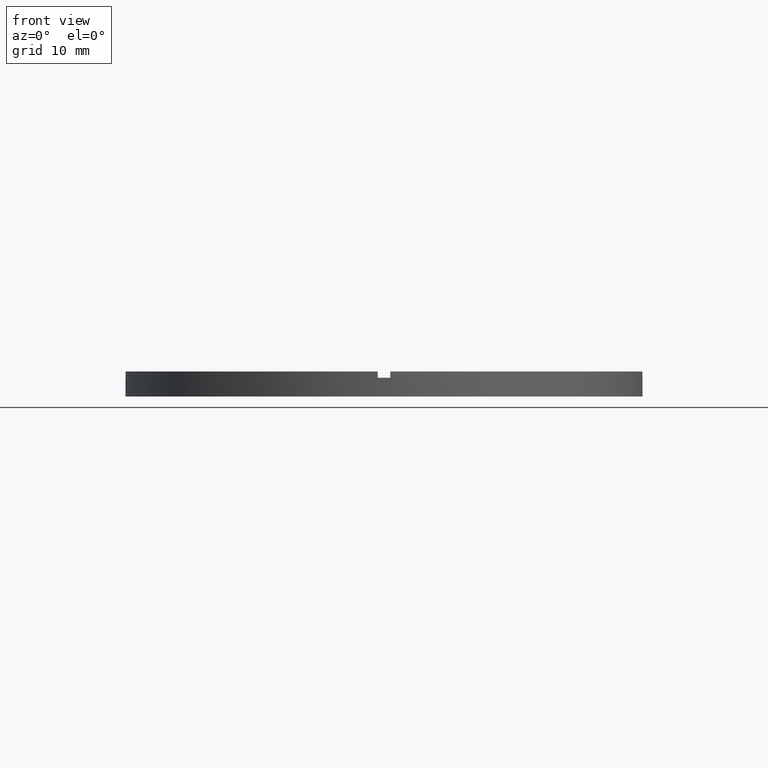
[diagram: clean part render]
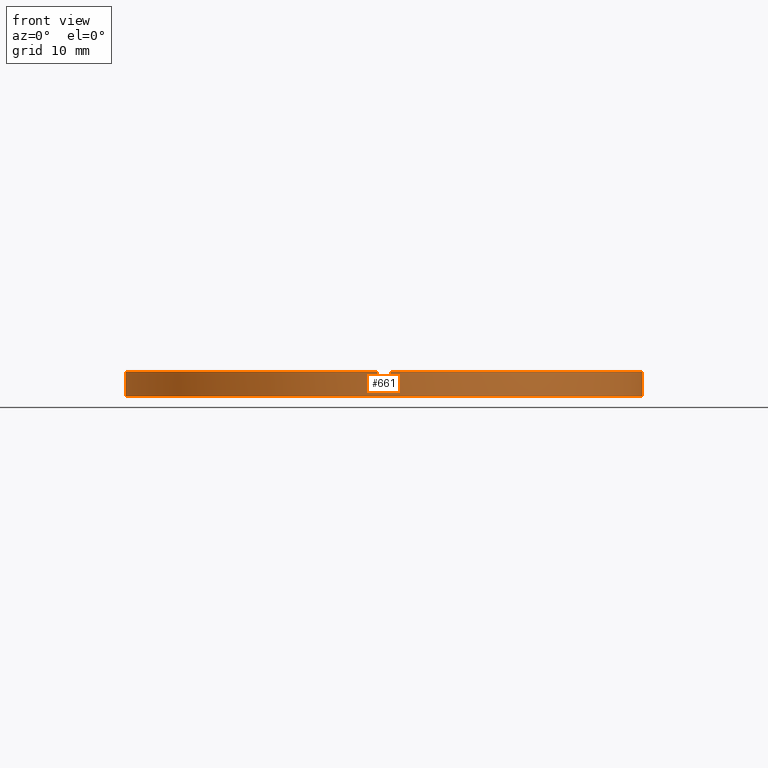
[diagram: same view with one face highlighted and labeled with its STEP entity id]
A machine part, front view. The second image highlights one B-rep face of the part: STEP entity #661.
In plain terms, the highlighted cylindrical surface (partial cylindrical patch) has radius 41.5 mm, axis along (-0, -0, -1).
Its self-contained STEP definition (entity closure, byte-faithful):
#16 = VERTEX_POINT ( 'NONE', #416 ) ;
#17 = DIRECTION ( 'NONE',  ( -1.000000000000000000, 0.000000000000000000, 0.000000000000000000 ) ) ;
#45 = EDGE_CURVE ( 'NONE', #16, #161, #681, .T. ) ;
#55 = CARTESIAN_POINT ( 'NONE',  ( 0.000000000000000000, 0.000000000000000000, 4.000000000000000000 ) ) ;
#63 = EDGE_CURVE ( 'NONE', #505, #712, #167, .T. ) ;
#64 = DIRECTION ( 'NONE',  ( 0.000000000000000000, 0.000000000000000000, 1.000000000000000000 ) ) ;
#66 = CARTESIAN_POINT ( 'NONE',  ( -41.50000000000000000, 0.000000000000000000, 4.000000000000000000 ) ) ;
#67 = EDGE_CURVE ( 'NONE', #505, #555, #156, .T. ) ;
#70 = DIRECTION ( 'NONE',  ( 0.000000000000000000, 0.000000000000000000, 1.000000000000000000 ) ) ;
#71 = CARTESIAN_POINT ( 'NONE',  ( 0.000000000000000000, 0.000000000000000000, 4.000000000000000000 ) ) ;
#72 = AXIS2_PLACEMENT_3D ( 'NONE', #71, #80, #17 ) ;
#76 = DIRECTION ( 'NONE',  ( 0.000000000000000000, 0.000000000000000000, 1.000000000000000000 ) ) ;
#80 = DIRECTION ( 'NONE',  ( -0.000000000000000000, -0.000000000000000000, -1.000000000000000000 ) ) ;
#82 = EDGE_CURVE ( 'NONE', #368, #16, #686, .T. ) ;
#85 = CARTESIAN_POINT ( 'NONE',  ( 41.48795005781799006, -1.000000000000156763, 3.000000000000000000 ) ) ;
#93 = EDGE_CURVE ( 'NONE', #564, #700, #466, .T. ) ;
#95 = CARTESIAN_POINT ( 'NONE',  ( 0.000000000000000000, 0.000000000000000000, 3.000000000000000000 ) ) ;
#100 = DIRECTION ( 'NONE',  ( -0.000000000000000000, -0.000000000000000000, -1.000000000000000000 ) ) ;
#110 = EDGE_LOOP ( 'NONE', ( #543, #778, #268, #507, #694, #767, #180, #429, #518, #574, #148, #178 ) ) ;
#117 = CARTESIAN_POINT ( 'NONE',  ( 0.000000000000000000, 0.000000000000000000, 3.000000000000000000 ) ) ;
#120 = CARTESIAN_POINT ( 'NONE',  ( 41.50000000000000000, 5.082284216461515748E-15, 0.000000000000000000 ) ) ;
#126 = DIRECTION ( 'NONE',  ( 1.000000000000000000, 0.000000000000000000, 0.000000000000000000 ) ) ;
#146 = DIRECTION ( 'NONE',  ( 0.000000000000000000, 0.000000000000000000, 1.000000000000000000 ) ) ;
#148 = ORIENTED_EDGE ( 'NONE', *, *, #82, .T. ) ;
#156 = LINE ( 'NONE', #571, #411 ) ;
#159 = EDGE_CURVE ( 'NONE', #521, #700, #437, .T. ) ;
#161 = VERTEX_POINT ( 'NONE', #120 ) ;
#167 = CIRCLE ( 'NONE', #444, 41.50000000000000000 ) ;
#171 = VERTEX_POINT ( 'NONE', #404 ) ;
#178 = ORIENTED_EDGE ( 'NONE', *, *, #45, .T. ) ;
#180 = ORIENTED_EDGE ( 'NONE', *, *, #159, .T. ) ;
#185 = LINE ( 'NONE', #617, #479 ) ;
#193 = AXIS2_PLACEMENT_3D ( 'NONE', #703, #70, #654 ) ;
#205 = CIRCLE ( 'NONE', #609, 41.50000000000000000 ) ;
#214 = VECTOR ( 'NONE', #100, 1000.000000000000000 ) ;
#223 = VECTOR ( 'NONE', #64, 1000.000000000000000 ) ;
#229 = EDGE_CURVE ( 'NONE', #521, #779, #708, .T. ) ;
#236 = VECTOR ( 'NONE', #286, 1000.000000000000000 ) ;
#249 = DIRECTION ( 'NONE',  ( -0.000000000000000000, -0.000000000000000000, -1.000000000000000000 ) ) ;
#268 = ORIENTED_EDGE ( 'NONE', *, *, #67, .T. ) ;
#276 = DIRECTION ( 'NONE',  ( -0.000000000000000000, -0.000000000000000000, -1.000000000000000000 ) ) ;
#286 = DIRECTION ( 'NONE',  ( -0.000000000000000000, -0.000000000000000000, -1.000000000000000000 ) ) ;
#308 = DIRECTION ( 'NONE',  ( 1.000000000000000000, 0.000000000000000000, 0.000000000000000000 ) ) ;
#316 = CARTESIAN_POINT ( 'NONE',  ( 41.50000000000000000, 5.082284216461515748E-15, 3.000000000000000000 ) ) ;
#317 = CARTESIAN_POINT ( 'NONE',  ( 0.9999999999998411271, -41.48795005781800427, 3.000000000000000000 ) ) ;
#327 = CARTESIAN_POINT ( 'NONE',  ( 0.9999999999998411271, -41.48795005781800427, 4.000000000000000000 ) ) ;
#332 = CARTESIAN_POINT ( 'NONE',  ( 0.9999999999998411271, -41.48795005781800427, 4.000000000000000000 ) ) ;
#339 = CARTESIAN_POINT ( 'NONE',  ( -41.48795005781799716, -1.000000000000028866, 4.000000000000000000 ) ) ;
#346 = EDGE_CURVE ( 'NONE', #527, #555, #205, .T. ) ;
#351 = AXIS2_PLACEMENT_3D ( 'NONE', #508, #613, #126 ) ;
#364 = CIRCLE ( 'NONE', #351, 41.50000000000000000 ) ;
#368 = VERTEX_POINT ( 'NONE', #544 ) ;
#379 = EDGE_CURVE ( 'NONE', #564, #171, #468, .T. ) ;
#398 = DIRECTION ( 'NONE',  ( -0.000000000000000000, 0.000000000000000000, 1.000000000000000000 ) ) ;
#404 = CARTESIAN_POINT ( 'NONE',  ( -41.48795005781799716, -1.000000000000028866, 3.000000000000000000 ) ) ;
#411 = VECTOR ( 'NONE', #658, 1000.000000000000000 ) ;
#416 = CARTESIAN_POINT ( 'NONE',  ( -41.50000000000000000, 0.000000000000000000, 0.000000000000000000 ) ) ;
#429 = ORIENTED_EDGE ( 'NONE', *, *, #93, .F. ) ;
#437 = LINE ( 'NONE', #722, #223 ) ;
#441 = EDGE_CURVE ( 'NONE', #712, #161, #185, .T. ) ;
#444 = AXIS2_PLACEMENT_3D ( 'NONE', #95, #76, #308 ) ;
#446 = VECTOR ( 'NONE', #249, 1000.000000000000000 ) ;
#466 = CIRCLE ( 'NONE', #193, 41.50000000000000000 ) ;
#468 = LINE ( 'NONE', #339, #214 ) ;
#479 = VECTOR ( 'NONE', #276, 1000.000000000000000 ) ;
#505 = VERTEX_POINT ( 'NONE', #85 ) ;
#507 = ORIENTED_EDGE ( 'NONE', *, *, #346, .F. ) ;
#508 = CARTESIAN_POINT ( 'NONE',  ( 0.000000000000000000, 0.000000000000000000, 3.000000000000000000 ) ) ;
#518 = ORIENTED_EDGE ( 'NONE', *, *, #379, .T. ) ;
#521 = VERTEX_POINT ( 'NONE', #585 ) ;
#527 = VERTEX_POINT ( 'NONE', #332 ) ;
#534 = EDGE_CURVE ( 'NONE', #527, #779, #762, .T. ) ;
#543 = ORIENTED_EDGE ( 'NONE', *, *, #441, .F. ) ;
#544 = CARTESIAN_POINT ( 'NONE',  ( -41.50000000000000000, 0.000000000000000000, 3.000000000000000000 ) ) ;
#553 = DIRECTION ( 'NONE',  ( 1.000000000000000000, 0.000000000000000000, 0.000000000000000000 ) ) ;
#555 = VERTEX_POINT ( 'NONE', #592 ) ;
#564 = VERTEX_POINT ( 'NONE', #669 ) ;
#571 = CARTESIAN_POINT ( 'NONE',  ( 41.48795005781799006, -1.000000000000156763, 4.000000000000000000 ) ) ;
#574 = ORIENTED_EDGE ( 'NONE', *, *, #719, .F. ) ;
#575 = AXIS2_PLACEMENT_3D ( 'NONE', #117, #398, #553 ) ;
#585 = CARTESIAN_POINT ( 'NONE',  ( -1.000000000000158984, -41.48795005781799006, 3.000000000000000000 ) ) ;
#592 = CARTESIAN_POINT ( 'NONE',  ( 41.48795005781799006, -1.000000000000156763, 4.000000000000000000 ) ) ;
#599 = DIRECTION ( 'NONE',  ( 1.000000000000000000, 0.000000000000000000, 0.000000000000000000 ) ) ;
#602 = DIRECTION ( 'NONE',  ( 1.000000000000000000, 0.000000000000000000, 0.000000000000000000 ) ) ;
#609 = AXIS2_PLACEMENT_3D ( 'NONE', #55, #146, #602 ) ;
#613 = DIRECTION ( 'NONE',  ( 0.000000000000000000, 0.000000000000000000, 1.000000000000000000 ) ) ;
#617 = CARTESIAN_POINT ( 'NONE',  ( 41.50000000000000000, 5.082284216461515748E-15, 4.000000000000000000 ) ) ;
#620 = DIRECTION ( 'NONE',  ( 0.000000000000000000, 0.000000000000000000, 1.000000000000000000 ) ) ;
#643 = AXIS2_PLACEMENT_3D ( 'NONE', #670, #620, #599 ) ;
#644 = CARTESIAN_POINT ( 'NONE',  ( -1.000000000000158984, -41.48795005781799006, 4.000000000000000000 ) ) ;
#654 = DIRECTION ( 'NONE',  ( 1.000000000000000000, 0.000000000000000000, 0.000000000000000000 ) ) ;
#658 = DIRECTION ( 'NONE',  ( 0.000000000000000000, 0.000000000000000000, 1.000000000000000000 ) ) ;
#661 = ADVANCED_FACE ( 'NONE', ( #746 ), #727, .T. ) ;
#669 = CARTESIAN_POINT ( 'NONE',  ( -41.48795005781799716, -1.000000000000028866, 4.000000000000000000 ) ) ;
#670 = CARTESIAN_POINT ( 'NONE',  ( 0.000000000000000000, 0.000000000000000000, 0.000000000000000000 ) ) ;
#681 = CIRCLE ( 'NONE', #643, 41.50000000000000000 ) ;
#686 = LINE ( 'NONE', #66, #446 ) ;
#694 = ORIENTED_EDGE ( 'NONE', *, *, #534, .T. ) ;
#700 = VERTEX_POINT ( 'NONE', #644 ) ;
#703 = CARTESIAN_POINT ( 'NONE',  ( 0.000000000000000000, 0.000000000000000000, 4.000000000000000000 ) ) ;
#708 = CIRCLE ( 'NONE', #575, 41.50000000000000000 ) ;
#712 = VERTEX_POINT ( 'NONE', #316 ) ;
#719 = EDGE_CURVE ( 'NONE', #368, #171, #364, .T. ) ;
#722 = CARTESIAN_POINT ( 'NONE',  ( -1.000000000000158984, -41.48795005781799006, 4.000000000000000000 ) ) ;
#727 = CYLINDRICAL_SURFACE ( 'NONE', #72, 41.50000000000000000 ) ;
#746 = FACE_OUTER_BOUND ( 'NONE', #110, .T. ) ;
#762 = LINE ( 'NONE', #327, #236 ) ;
#767 = ORIENTED_EDGE ( 'NONE', *, *, #229, .F. ) ;
#778 = ORIENTED_EDGE ( 'NONE', *, *, #63, .F. ) ;
#779 = VERTEX_POINT ( 'NONE', #317 ) ;